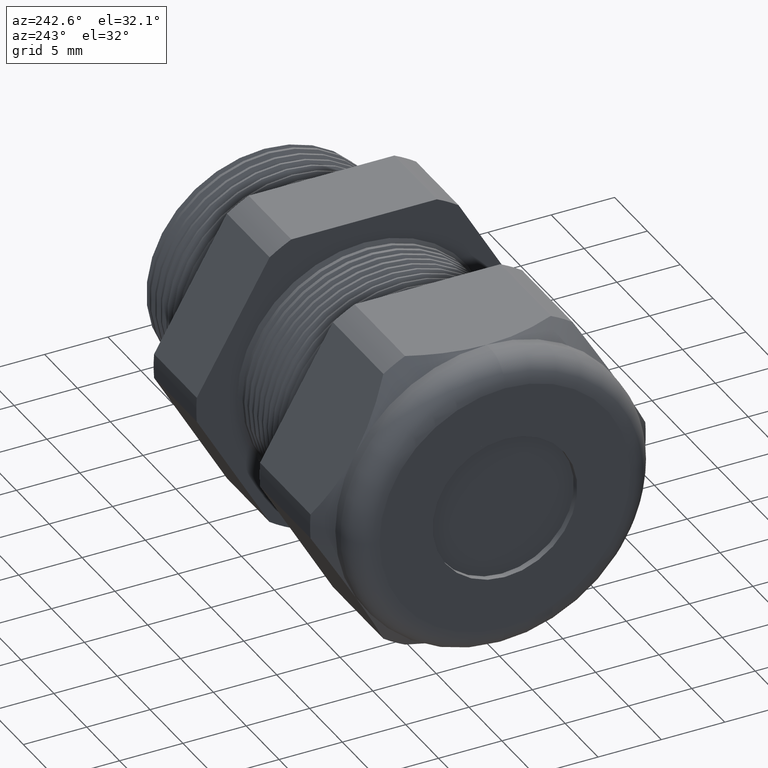
[diagram: clean part render]
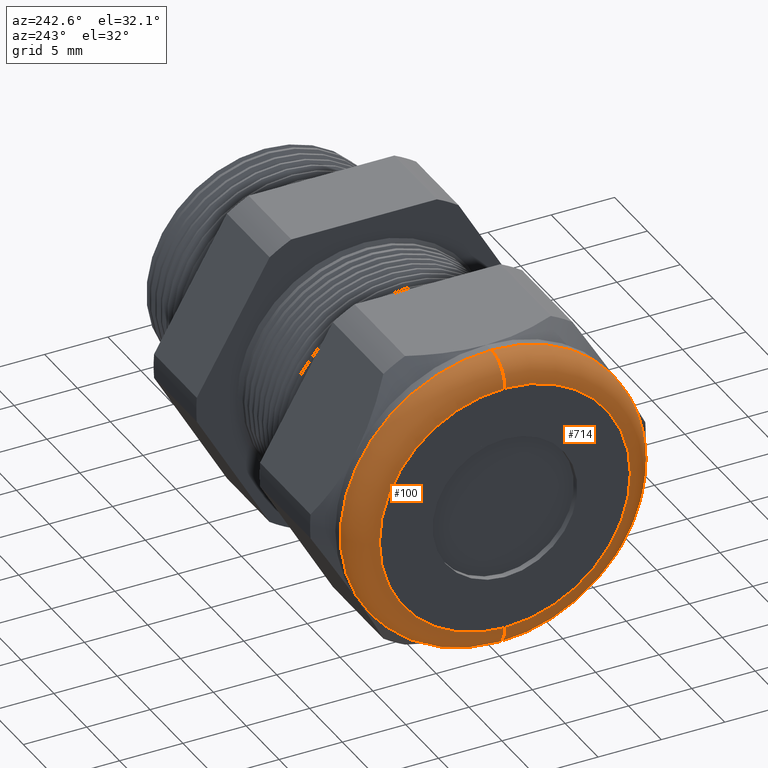
[diagram: same view with one multi-face feature highlighted, each face labeled with its STEP entity id]
A machine part, auxiliary view. The highlighted faces form ONE feature: a constant-radius fillet chain: 2 tangent blend faces with common blend radius 2.032 mm. The faces share edges in the B-rep.
Their STEP definitions:
[1] entity #714 (Torus):
#80 = VERTEX_POINT ( 'NONE', #1883 ) ;
#83 = VERTEX_POINT ( 'NONE', #1877 ) ;
#85 = EDGE_CURVE ( 'NONE', #105, #83, #1876, .T. ) ;
#104 = VERTEX_POINT ( 'NONE', #1905 ) ;
#105 = VERTEX_POINT ( 'NONE', #1904 ) ;
#107 = EDGE_CURVE ( 'NONE', #104, #80, #1902, .T. ) ;
#555 = EDGE_CURVE ( 'NONE', #80, #83, #2844, .T. ) ;
#613 = EDGE_CURVE ( 'NONE', #105, #104, #2942, .T. ) ;
#714 = ADVANCED_FACE ( 'NONE', ( #3086 ), #3085, .T. ) ;
#715 = EDGE_LOOP ( 'NONE', ( #772, #773, #774, #775 ) ) ;
#772 = ORIENTED_EDGE ( 'NONE', *, *, #107, .F. ) ;
#773 = ORIENTED_EDGE ( 'NONE', *, *, #613, .F. ) ;
#774 = ORIENTED_EDGE ( 'NONE', *, *, #85, .T. ) ;
#775 = ORIENTED_EDGE ( 'NONE', *, *, #555, .F. ) ;
#1872 = DIRECTION ( 'NONE',  ( 0.0000000000000000000, 0.0000000000000000000, -1.000000000000000000 ) ) ;
#1873 = DIRECTION ( 'NONE',  ( 0.0000000000000000000, -1.000000000000000000, 0.0000000000000000000 ) ) ;
#1874 = CARTESIAN_POINT ( 'NONE',  ( -1.330000000000000100, 0.0000000000000000000, 0.3899999999999999600 ) ) ;
#1875 = AXIS2_PLACEMENT_3D ( 'NONE', #1874, #1873, #1872 ) ;
#1876 = CIRCLE ( 'NONE', #1875, 0.07999999999999996000 ) ;
#1877 = CARTESIAN_POINT ( 'NONE',  ( -1.409999999999999900, 0.0000000000000000000, 0.3899999999999999600 ) ) ;
#1883 = CARTESIAN_POINT ( 'NONE',  ( -1.409999999999999900, 5.265981236333617600E-017, -0.3899999999999999600 ) ) ;
#1898 = DIRECTION ( 'NONE',  ( 0.0000000000000000000, -1.224646799147353900E-016, 1.000000000000000000 ) ) ;
#1899 = DIRECTION ( 'NONE',  ( 0.0000000000000000000, 1.000000000000000000, 1.224646799147353200E-016 ) ) ;
#1900 = CARTESIAN_POINT ( 'NONE',  ( -1.330000000000000100, 4.776122516674676800E-017, -0.3899999999999999600 ) ) ;
#1901 = AXIS2_PLACEMENT_3D ( 'NONE', #1900, #1899, #1898 ) ;
#1902 = CIRCLE ( 'NONE', #1901, 0.07999999999999996000 ) ;
#1904 = CARTESIAN_POINT ( 'NONE',  ( -1.330000000000000100, 5.755839955992558400E-017, 0.4699999999999999200 ) ) ;
#1905 = CARTESIAN_POINT ( 'NONE',  ( -1.330000000000000100, 0.0000000000000000000, -0.4699999999999999200 ) ) ;
#2840 = DIRECTION ( 'NONE',  ( 0.0000000000000000000, 0.0000000000000000000, 1.000000000000000000 ) ) ;
#2841 = DIRECTION ( 'NONE',  ( -1.000000000000000000, 0.0000000000000000000, 0.0000000000000000000 ) ) ;
#2842 = CARTESIAN_POINT ( 'NONE',  ( -1.409999999999999900, 0.0000000000000000000, 0.0000000000000000000 ) ) ;
#2843 = AXIS2_PLACEMENT_3D ( 'NONE', #2842, #2841, #2840 ) ;
#2844 = CIRCLE ( 'NONE', #2843, 0.3899999999999999600 ) ;
#2939 = DIRECTION ( 'NONE',  ( 0.0000000000000000000, 0.0000000000000000000, 1.000000000000000000 ) ) ;
#2940 = DIRECTION ( 'NONE',  ( 1.000000000000000000, 0.0000000000000000000, 0.0000000000000000000 ) ) ;
#2941 = AXIS2_PLACEMENT_3D ( 'NONE', #2946, #2940, #2939 ) ;
#2942 = CIRCLE ( 'NONE', #2941, 0.4699999999999999200 ) ;
#2946 = CARTESIAN_POINT ( 'NONE',  ( -1.330000000000000100, 0.0000000000000000000, 0.0000000000000000000 ) ) ;
#3081 = DIRECTION ( 'NONE',  ( 0.0000000000000000000, 0.0000000000000000000, 1.000000000000000000 ) ) ;
#3082 = DIRECTION ( 'NONE',  ( -1.000000000000000000, 0.0000000000000000000, 0.0000000000000000000 ) ) ;
#3083 = CARTESIAN_POINT ( 'NONE',  ( -1.330000000000000100, 0.0000000000000000000, 0.0000000000000000000 ) ) ;
#3084 = AXIS2_PLACEMENT_3D ( 'NONE', #3083, #3082, #3081 ) ;
#3085 = TOROIDAL_SURFACE ( 'NONE', #3084, 0.3899999999999999600, 0.08000000000000000200 ) ;
#3086 = FACE_OUTER_BOUND ( 'NONE', #715, .T. ) ;
[2] entity #100 (Torus):
#80 = VERTEX_POINT ( 'NONE', #1883 ) ;
#81 = ORIENTED_EDGE ( 'NONE', *, *, #82, .F. ) ;
#82 = EDGE_CURVE ( 'NONE', #83, #80, #1882, .T. ) ;
#83 = VERTEX_POINT ( 'NONE', #1877 ) ;
#84 = ORIENTED_EDGE ( 'NONE', *, *, #85, .F. ) ;
#85 = EDGE_CURVE ( 'NONE', #105, #83, #1876, .T. ) ;
#100 = ADVANCED_FACE ( 'NONE', ( #1916 ), #1914, .T. ) ;
#101 = EDGE_LOOP ( 'NONE', ( #102, #106, #81, #84 ) ) ;
#102 = ORIENTED_EDGE ( 'NONE', *, *, #103, .F. ) ;
#103 = EDGE_CURVE ( 'NONE', #104, #105, #1910, .T. ) ;
#104 = VERTEX_POINT ( 'NONE', #1905 ) ;
#105 = VERTEX_POINT ( 'NONE', #1904 ) ;
#106 = ORIENTED_EDGE ( 'NONE', *, *, #107, .T. ) ;
#107 = EDGE_CURVE ( 'NONE', #104, #80, #1902, .T. ) ;
#1872 = DIRECTION ( 'NONE',  ( 0.0000000000000000000, 0.0000000000000000000, -1.000000000000000000 ) ) ;
#1873 = DIRECTION ( 'NONE',  ( 0.0000000000000000000, -1.000000000000000000, 0.0000000000000000000 ) ) ;
#1874 = CARTESIAN_POINT ( 'NONE',  ( -1.330000000000000100, 0.0000000000000000000, 0.3899999999999999600 ) ) ;
#1875 = AXIS2_PLACEMENT_3D ( 'NONE', #1874, #1873, #1872 ) ;
#1876 = CIRCLE ( 'NONE', #1875, 0.07999999999999996000 ) ;
#1877 = CARTESIAN_POINT ( 'NONE',  ( -1.409999999999999900, 0.0000000000000000000, 0.3899999999999999600 ) ) ;
#1878 = DIRECTION ( 'NONE',  ( 0.0000000000000000000, 0.0000000000000000000, 1.000000000000000000 ) ) ;
#1879 = DIRECTION ( 'NONE',  ( -1.000000000000000000, 0.0000000000000000000, 0.0000000000000000000 ) ) ;
#1880 = CARTESIAN_POINT ( 'NONE',  ( -1.409999999999999900, 0.0000000000000000000, 0.0000000000000000000 ) ) ;
#1881 = AXIS2_PLACEMENT_3D ( 'NONE', #1880, #1879, #1878 ) ;
#1882 = CIRCLE ( 'NONE', #1881, 0.3899999999999999600 ) ;
#1883 = CARTESIAN_POINT ( 'NONE',  ( -1.409999999999999900, 5.265981236333617600E-017, -0.3899999999999999600 ) ) ;
#1898 = DIRECTION ( 'NONE',  ( 0.0000000000000000000, -1.224646799147353900E-016, 1.000000000000000000 ) ) ;
#1899 = DIRECTION ( 'NONE',  ( 0.0000000000000000000, 1.000000000000000000, 1.224646799147353200E-016 ) ) ;
#1900 = CARTESIAN_POINT ( 'NONE',  ( -1.330000000000000100, 4.776122516674676800E-017, -0.3899999999999999600 ) ) ;
#1901 = AXIS2_PLACEMENT_3D ( 'NONE', #1900, #1899, #1898 ) ;
#1902 = CIRCLE ( 'NONE', #1901, 0.07999999999999996000 ) ;
#1904 = CARTESIAN_POINT ( 'NONE',  ( -1.330000000000000100, 5.755839955992558400E-017, 0.4699999999999999200 ) ) ;
#1905 = CARTESIAN_POINT ( 'NONE',  ( -1.330000000000000100, 0.0000000000000000000, -0.4699999999999999200 ) ) ;
#1906 = DIRECTION ( 'NONE',  ( 0.0000000000000000000, 0.0000000000000000000, 1.000000000000000000 ) ) ;
#1907 = DIRECTION ( 'NONE',  ( 1.000000000000000000, 0.0000000000000000000, 0.0000000000000000000 ) ) ;
#1908 = CARTESIAN_POINT ( 'NONE',  ( -1.330000000000000100, 0.0000000000000000000, 0.0000000000000000000 ) ) ;
#1909 = AXIS2_PLACEMENT_3D ( 'NONE', #1908, #1907, #1906 ) ;
#1910 = CIRCLE ( 'NONE', #1909, 0.4699999999999999200 ) ;
#1911 = DIRECTION ( 'NONE',  ( 0.0000000000000000000, 0.0000000000000000000, 1.000000000000000000 ) ) ;
#1912 = DIRECTION ( 'NONE',  ( -1.000000000000000000, 0.0000000000000000000, 0.0000000000000000000 ) ) ;
#1913 = AXIS2_PLACEMENT_3D ( 'NONE', #1915, #1912, #1911 ) ;
#1914 = TOROIDAL_SURFACE ( 'NONE', #1913, 0.3899999999999999600, 0.08000000000000000200 ) ;
#1915 = CARTESIAN_POINT ( 'NONE',  ( -1.330000000000000100, 0.0000000000000000000, 0.0000000000000000000 ) ) ;
#1916 = FACE_OUTER_BOUND ( 'NONE', #101, .T. ) ;